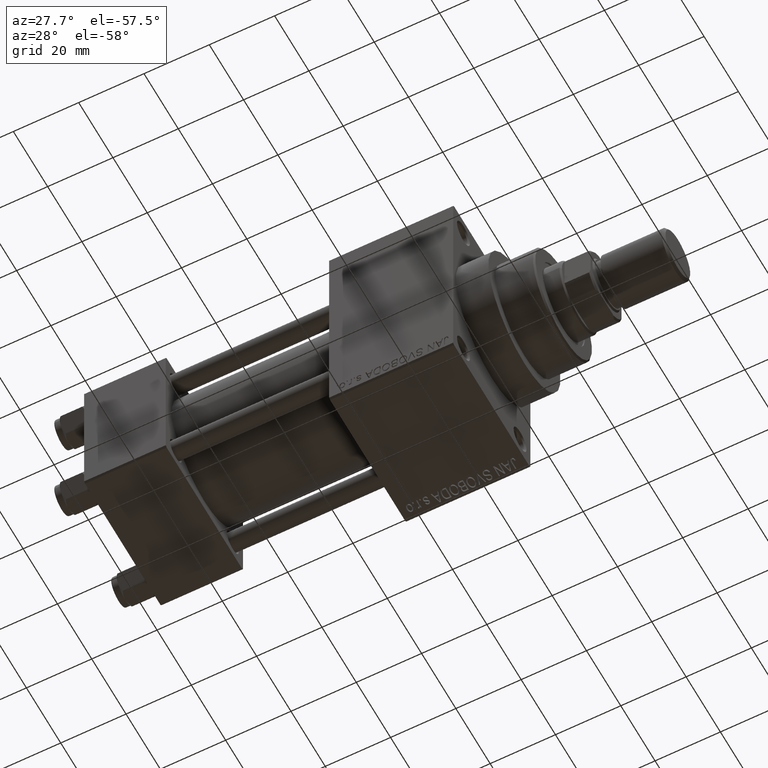
[diagram: clean part render]
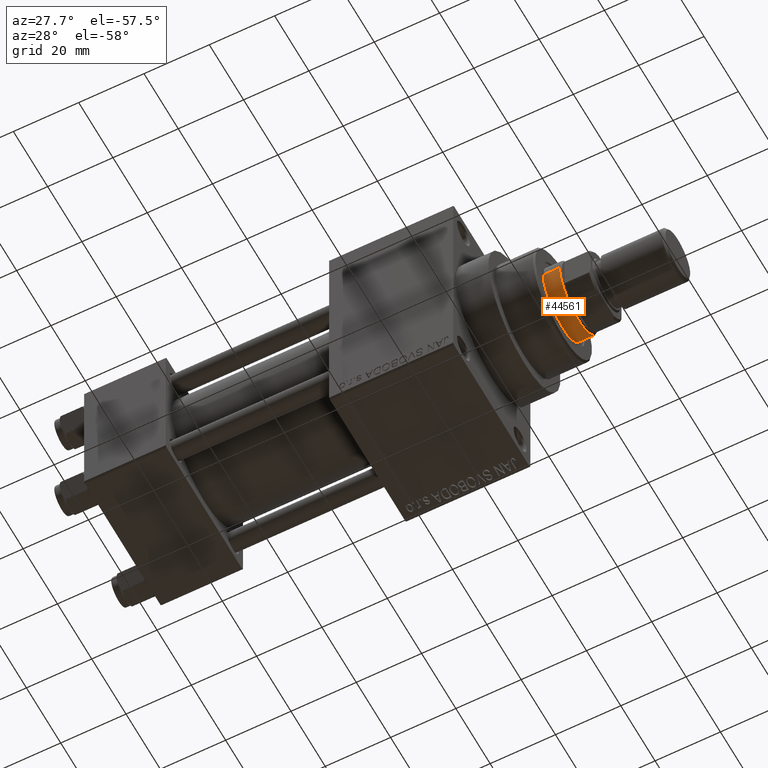
[diagram: same view with one face highlighted and labeled with its STEP entity id]
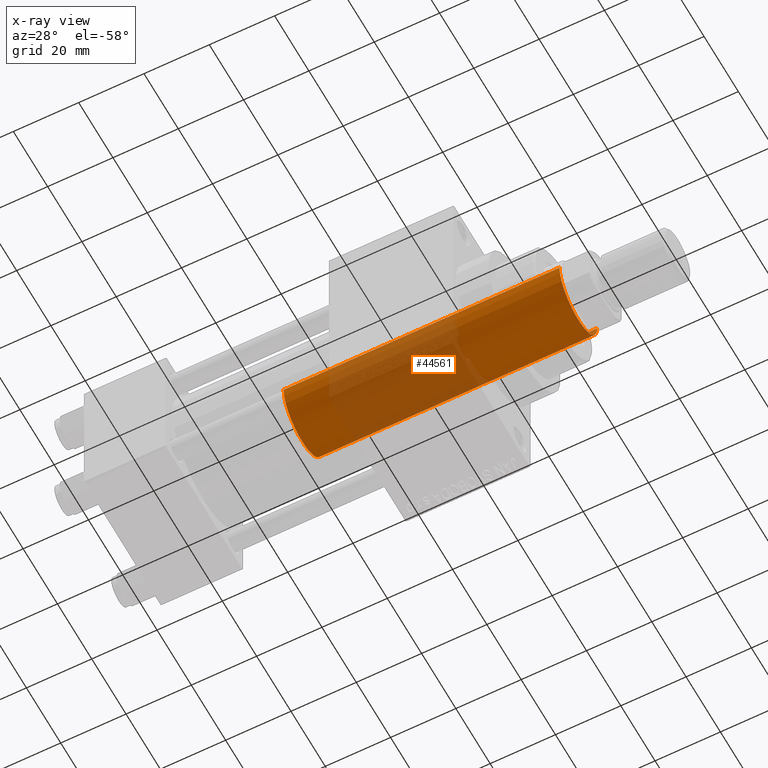
[diagram: x-ray of the same camera — body ghosted, the highlighted face saturated]
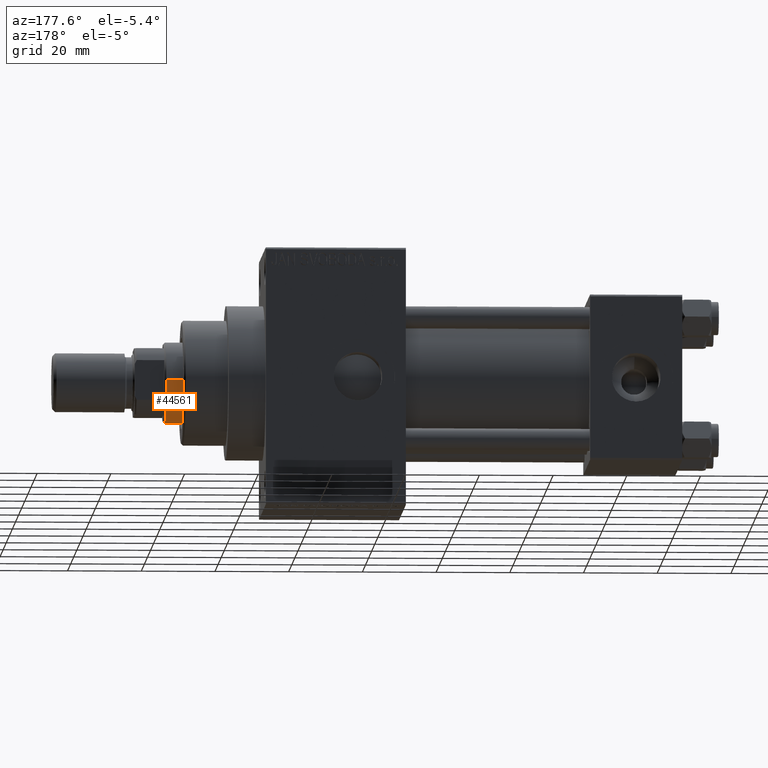
[diagram: same view with one face highlighted and labeled with its STEP entity id]
A machine part, auxiliary view. The second image highlights one B-rep face of the part: STEP entity #44561.
The next image is the same camera in x-ray: the body ghosted, the highlighted face saturated — about 47% of this face is hidden behind the body in this view.
A second angle (auxiliary view) of the same face is appended — the face is thin or edge-on in the first view.
In plain terms, the highlighted cylindrical surface (partial cylindrical patch) has radius 11 mm, axis along (-1, 0, 0).
Its self-contained STEP definition (entity closure, byte-faithful):
#2137 = CIRCLE ( 'NONE', #10587, 11.00000000000000000 ) ;
#3128 = DIRECTION ( 'NONE',  ( 0.000000000000000000, 0.000000000000000000, 1.000000000000000000 ) ) ;
#3698 = CYLINDRICAL_SURFACE ( 'NONE', #15209, 11.00000000000000000 ) ;
#4020 = CIRCLE ( 'NONE', #44786, 11.00000000000000000 ) ;
#6100 = EDGE_CURVE ( 'NONE', #15013, #28930, #34857, .T. ) ;
#6261 = CARTESIAN_POINT ( 'NONE',  ( 0.000000000000000000, 0.000000000000000000, 30.00000000000000000 ) ) ;
#7626 = ORIENTED_EDGE ( 'NONE', *, *, #26147, .T. ) ;
#9444 = VERTEX_POINT ( 'NONE', #28749 ) ;
#9640 = EDGE_CURVE ( 'NONE', #40365, #28930, #4020, .T. ) ;
#10012 = CARTESIAN_POINT ( 'NONE',  ( 0.000000000000000000, 0.000000000000000000, 114.5000000000000142 ) ) ;
#10587 = AXIS2_PLACEMENT_3D ( 'NONE', #10012, #17244, #17478 ) ;
#12684 = CARTESIAN_POINT ( 'NONE',  ( 11.00000000000000000, 1.347111479062088405E-15, 115.0000000000000000 ) ) ;
#14550 = FACE_OUTER_BOUND ( 'NONE', #34742, .T. ) ;
#14972 = ORIENTED_EDGE ( 'NONE', *, *, #9640, .T. ) ;
#15013 = VERTEX_POINT ( 'NONE', #41932 ) ;
#15209 = AXIS2_PLACEMENT_3D ( 'NONE', #39341, #36433, #35716 ) ;
#15490 = ORIENTED_EDGE ( 'NONE', *, *, #24785, .T. ) ;
#17244 = DIRECTION ( 'NONE',  ( 0.000000000000000000, 0.000000000000000000, -1.000000000000000000 ) ) ;
#17478 = DIRECTION ( 'NONE',  ( 1.000000000000000000, 0.000000000000000000, 0.000000000000000000 ) ) ;
#20505 = DIRECTION ( 'NONE',  ( 1.000000000000000000, 0.000000000000000000, 0.000000000000000000 ) ) ;
#24785 = EDGE_CURVE ( 'NONE', #15013, #9444, #2137, .T. ) ;
#26147 = EDGE_CURVE ( 'NONE', #9444, #40365, #45904, .T. ) ;
#27353 = DIRECTION ( 'NONE',  ( -0.000000000000000000, -0.000000000000000000, -1.000000000000000000 ) ) ;
#27386 = DIRECTION ( 'NONE',  ( -0.000000000000000000, -0.000000000000000000, -1.000000000000000000 ) ) ;
#28749 = CARTESIAN_POINT ( 'NONE',  ( 11.00000000000000000, 1.347111479062088405E-15, 114.5000000000000142 ) ) ;
#28930 = VERTEX_POINT ( 'NONE', #39931 ) ;
#34472 = VECTOR ( 'NONE', #27353, 1000.000000000000000 ) ;
#34742 = EDGE_LOOP ( 'NONE', ( #15490, #7626, #14972, #39860 ) ) ;
#34857 = LINE ( 'NONE', #46179, #38120 ) ;
#35716 = DIRECTION ( 'NONE',  ( -1.000000000000000000, 0.000000000000000000, 0.000000000000000000 ) ) ;
#36433 = DIRECTION ( 'NONE',  ( -0.000000000000000000, -0.000000000000000000, -1.000000000000000000 ) ) ;
#38120 = VECTOR ( 'NONE', #27386, 1000.000000000000000 ) ;
#39341 = CARTESIAN_POINT ( 'NONE',  ( 0.000000000000000000, 0.000000000000000000, 115.0000000000000000 ) ) ;
#39860 = ORIENTED_EDGE ( 'NONE', *, *, #6100, .F. ) ;
#39931 = CARTESIAN_POINT ( 'NONE',  ( -11.00000000000000000, 0.000000000000000000, 30.00000000000000000 ) ) ;
#40365 = VERTEX_POINT ( 'NONE', #45590 ) ;
#41932 = CARTESIAN_POINT ( 'NONE',  ( -11.00000000000000000, 0.000000000000000000, 114.5000000000000142 ) ) ;
#44561 = ADVANCED_FACE ( 'NONE', ( #14550 ), #3698, .T. ) ;
#44786 = AXIS2_PLACEMENT_3D ( 'NONE', #6261, #3128, #20505 ) ;
#45590 = CARTESIAN_POINT ( 'NONE',  ( 11.00000000000000000, 1.347111479062088405E-15, 30.00000000000000000 ) ) ;
#45904 = LINE ( 'NONE', #12684, #34472 ) ;
#46179 = CARTESIAN_POINT ( 'NONE',  ( -11.00000000000000000, 0.000000000000000000, 115.0000000000000000 ) ) ;